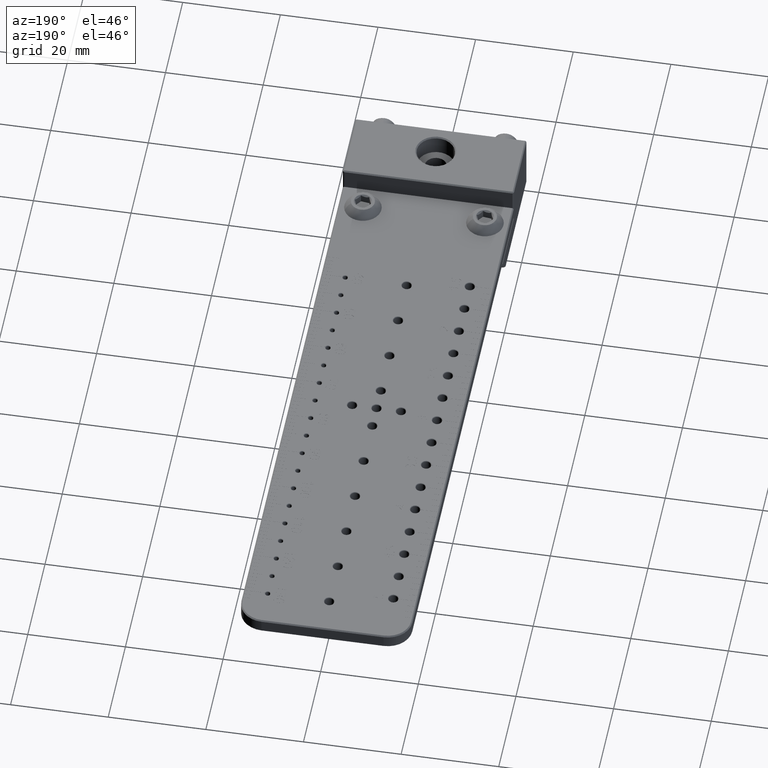
[diagram: clean part render]
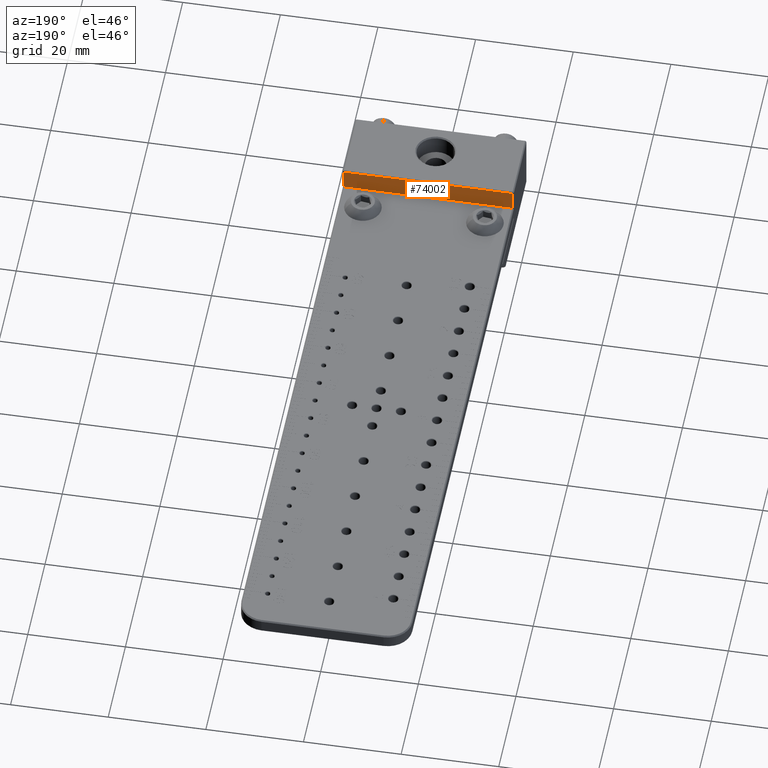
[diagram: same view with one face highlighted and labeled with its STEP entity id]
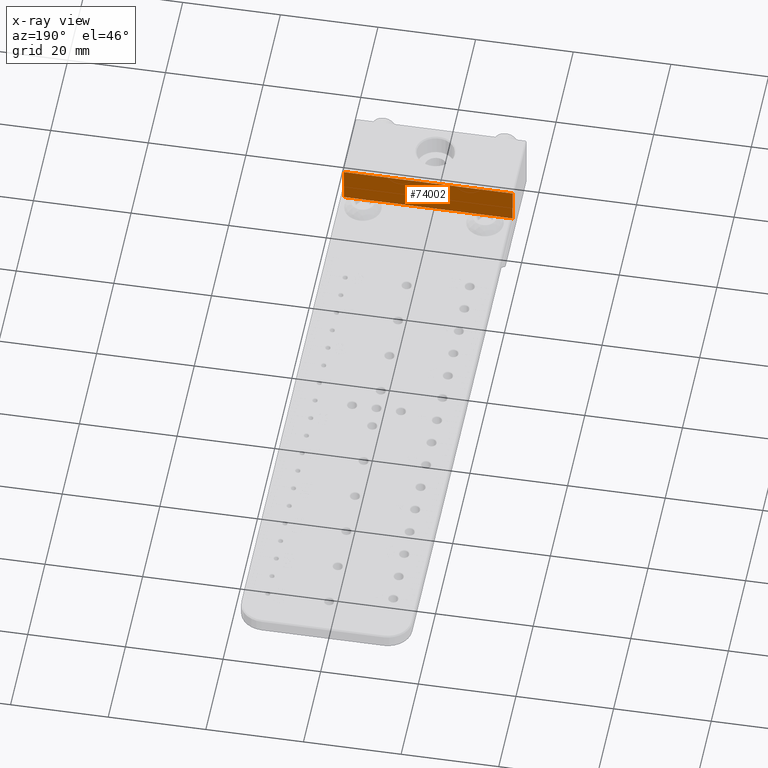
[diagram: x-ray of the same camera — body ghosted, the highlighted face saturated]
A machine part, auxiliary view. The second image highlights one B-rep face of the part: STEP entity #74002.
The next image is the same camera in x-ray: the body ghosted, the highlighted face saturated — about 0% of this face is hidden behind the body in this view.
In plain terms, the highlighted planar face has unit normal (0, -1, 0).
Its self-contained STEP definition (entity closure, byte-faithful):
#2693 = DIRECTION ( 'NONE',  ( 0.000000000000000000, 0.000000000000000000, -1.000000000000000000 ) ) ;
#3110 = LINE ( 'NONE', #21024, #6797 ) ;
#3289 = FACE_OUTER_BOUND ( 'NONE', #79274, .T. ) ;
#5605 = VERTEX_POINT ( 'NONE', #84442 ) ;
#6797 = VECTOR ( 'NONE', #102258, 1000.000000000000000 ) ;
#11009 = CARTESIAN_POINT ( 'NONE',  ( 17.25000000000000355, 15.00000000000000000, 1.500000000000000222 ) ) ;
#15641 = VERTEX_POINT ( 'NONE', #108006 ) ;
#16399 = CARTESIAN_POINT ( 'NONE',  ( -17.49999999999999289, 15.00000000000000000, 5.749999999999993783 ) ) ;
#20201 = LINE ( 'NONE', #75709, #54158 ) ;
#21024 = CARTESIAN_POINT ( 'NONE',  ( -17.24999999999998934, 15.00000000000000000, 1.500000000000000222 ) ) ;
#22773 = ORIENTED_EDGE ( 'NONE', *, *, #56445, .F. ) ;
#36656 = AXIS2_PLACEMENT_3D ( 'NONE', #104202, #111385, #2693 ) ;
#38120 = DIRECTION ( 'NONE',  ( 1.000000000000000000, -0.000000000000000000, -0.000000000000000000 ) ) ;
#40511 = EDGE_CURVE ( 'NONE', #15641, #93820, #64133, .T. ) ;
#48649 = PLANE ( 'NONE',  #36656 ) ;
#54158 = VECTOR ( 'NONE', #38120, 1000.000000000000000 ) ;
#55215 = LINE ( 'NONE', #11009, #67413 ) ;
#56445 = EDGE_CURVE ( 'NONE', #98736, #5605, #20201, .T. ) ;
#58672 = EDGE_CURVE ( 'NONE', #98736, #15641, #3110, .T. ) ;
#60705 = VECTOR ( 'NONE', #71303, 1000.000000000000000 ) ;
#64133 = LINE ( 'NONE', #16399, #60705 ) ;
#67413 = VECTOR ( 'NONE', #74305, 1000.000000000000000 ) ;
#69982 = CARTESIAN_POINT ( 'NONE',  ( 17.25000000000000355, 15.00000000000000000, 5.749999999999993783 ) ) ;
#71303 = DIRECTION ( 'NONE',  ( 1.000000000000000000, 0.000000000000000000, 0.000000000000000000 ) ) ;
#74002 = ADVANCED_FACE ( 'NONE', ( #3289 ), #48649, .F. ) ;
#74305 = DIRECTION ( 'NONE',  ( 0.000000000000000000, 0.000000000000000000, -1.000000000000000000 ) ) ;
#75709 = CARTESIAN_POINT ( 'NONE',  ( -17.49999999999999289, 15.00000000000000000, -1.499999999999999778 ) ) ;
#76208 = EDGE_CURVE ( 'NONE', #93820, #5605, #55215, .T. ) ;
#79274 = EDGE_LOOP ( 'NONE', ( #22773, #102830, #79549, #105129 ) ) ;
#79549 = ORIENTED_EDGE ( 'NONE', *, *, #40511, .T. ) ;
#84442 = CARTESIAN_POINT ( 'NONE',  ( 17.25000000000000355, 15.00000000000000000, -1.499999999999999778 ) ) ;
#93820 = VERTEX_POINT ( 'NONE', #69982 ) ;
#98736 = VERTEX_POINT ( 'NONE', #103212 ) ;
#102258 = DIRECTION ( 'NONE',  ( 0.000000000000000000, 0.000000000000000000, 1.000000000000000000 ) ) ;
#102830 = ORIENTED_EDGE ( 'NONE', *, *, #58672, .T. ) ;
#103212 = CARTESIAN_POINT ( 'NONE',  ( -17.24999999999998934, 15.00000000000000000, -1.499999999999999778 ) ) ;
#104202 = CARTESIAN_POINT ( 'NONE',  ( -17.49999999999999289, 15.00000000000000000, 1.500000000000000222 ) ) ;
#105129 = ORIENTED_EDGE ( 'NONE', *, *, #76208, .T. ) ;
#108006 = CARTESIAN_POINT ( 'NONE',  ( -17.24999999999998934, 15.00000000000000000, 5.749999999999993783 ) ) ;
#111385 = DIRECTION ( 'NONE',  ( 0.000000000000000000, -1.000000000000000000, -0.000000000000000000 ) ) ;